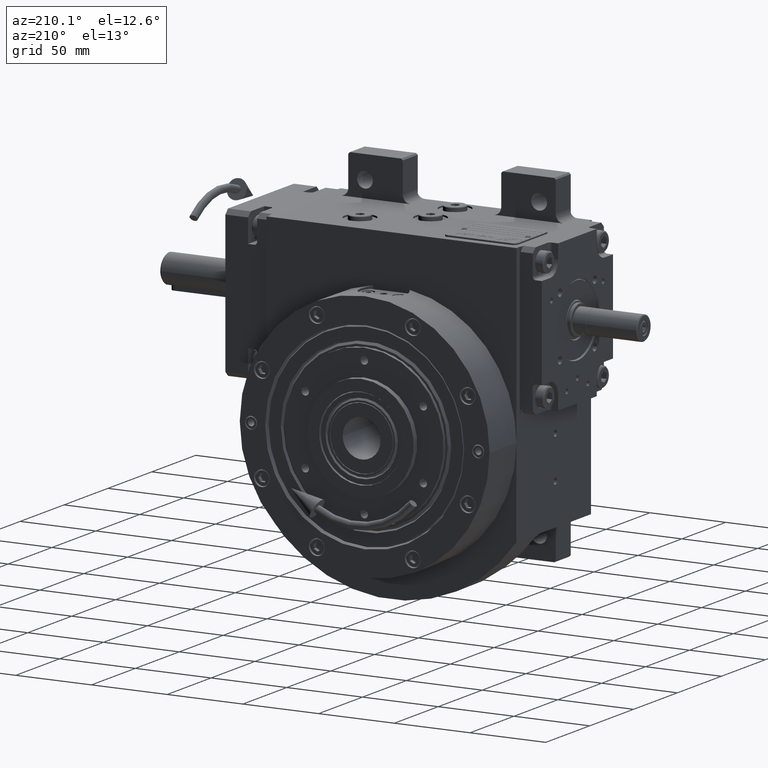
[diagram: clean part render]
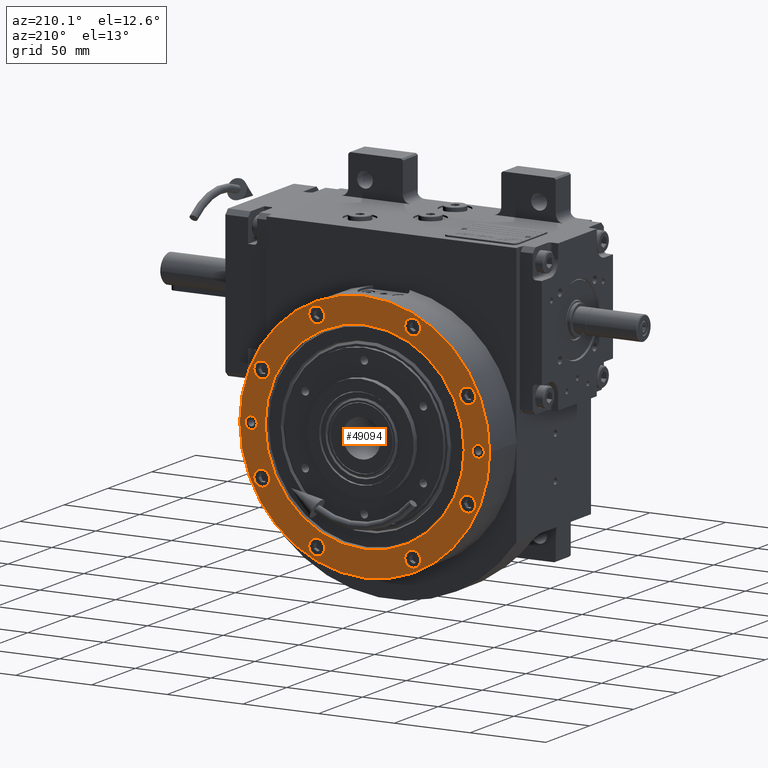
[diagram: same view with one face highlighted and labeled with its STEP entity id]
A machine part, auxiliary view. The second image highlights one B-rep face of the part: STEP entity #49094.
In plain terms, the highlighted planar face has unit normal (0, 1, 0).
Its self-contained STEP definition (entity closure, byte-faithful):
#173 = ORIENTED_EDGE ( 'NONE', *, *, #72139, .T. ) ;
#447 = AXIS2_PLACEMENT_3D ( 'NONE', #58576, #47555, #30694 ) ;
#1049 = AXIS2_PLACEMENT_3D ( 'NONE', #35669, #58048, #7778 ) ;
#1372 = ORIENTED_EDGE ( 'NONE', *, *, #19124, .F. ) ;
#1674 = CARTESIAN_POINT ( 'NONE',  ( 78.99999999999998579, 0.000000000000000000, 30.49999999999999289 ) ) ;
#1764 = CIRCLE ( 'NONE', #8726, 5.250000000000000888 ) ;
#1939 = EDGE_CURVE ( 'NONE', #35901, #51865, #2593, .T. ) ;
#2060 = FACE_BOUND ( 'NONE', #59719, .T. ) ;
#2550 = EDGE_LOOP ( 'NONE', ( #64256, #65587, #173 ) ) ;
#2593 = CIRCLE ( 'NONE', #447, 5.250000000000004441 ) ;
#2621 = CIRCLE ( 'NONE', #4972, 5.249999999999997335 ) ;
#2821 = EDGE_LOOP ( 'NONE', ( #29631, #53922 ) ) ;
#3004 = DIRECTION ( 'NONE',  ( 1.000000000000000000, 0.000000000000000000, 0.000000000000000000 ) ) ;
#3092 = DIRECTION ( 'NONE',  ( 0.000000000000000000, 0.000000000000000000, 1.000000000000000000 ) ) ;
#3125 = DIRECTION ( 'NONE',  ( -1.000000000000000000, 0.000000000000000000, 0.000000000000000000 ) ) ;
#3346 = AXIS2_PLACEMENT_3D ( 'NONE', #54854, #54131, #20775 ) ;
#3845 = CARTESIAN_POINT ( 'NONE',  ( 31.69636963055000223, 67.97308402775000502, 30.49999999999999289 ) ) ;
#3880 = EDGE_LOOP ( 'NONE', ( #25010, #62377 ) ) ;
#3949 = VERTEX_POINT ( 'NONE', #48915 ) ;
#4665 = ORIENTED_EDGE ( 'NONE', *, *, #23629, .F. ) ;
#4972 = AXIS2_PLACEMENT_3D ( 'NONE', #3845, #35758, #8961 ) ;
#5051 = VERTEX_POINT ( 'NONE', #41392 ) ;
#5174 = CARTESIAN_POINT ( 'NONE',  ( 0.000000000000000000, 0.000000000000000000, 30.49999999999999289 ) ) ;
#5299 = AXIS2_PLACEMENT_3D ( 'NONE', #66306, #16021, #49406 ) ;
#5449 = CARTESIAN_POINT ( 'NONE',  ( 0.000000000000000000, 0.000000000000000000, 30.49999999999999289 ) ) ;
#5511 = EDGE_CURVE ( 'NONE', #35558, #24035, #68905, .T. ) ;
#5673 = CARTESIAN_POINT ( 'NONE',  ( -82.50000000000001421, 2.020633851199993078E-14, 30.49999999999999289 ) ) ;
#5674 = EDGE_LOOP ( 'NONE', ( #40775, #36698 ) ) ;
#6090 = ORIENTED_EDGE ( 'NONE', *, *, #65025, .F. ) ;
#6881 = DIRECTION ( 'NONE',  ( 1.000000000000000000, 0.000000000000000000, 0.000000000000000000 ) ) ;
#7104 = DIRECTION ( 'NONE',  ( 0.000000000000000000, 0.000000000000000000, -1.000000000000000000 ) ) ;
#7297 = VERTEX_POINT ( 'NONE', #39184 ) ;
#7377 = CARTESIAN_POINT ( 'NONE',  ( -73.22308402774999081, 31.69636963055000223, 30.49999999999999289 ) ) ;
#7386 = VERTEX_POINT ( 'NONE', #10192 ) ;
#7554 = DIRECTION ( 'NONE',  ( -1.000000000000000000, 0.000000000000000000, 0.000000000000000000 ) ) ;
#7778 = DIRECTION ( 'NONE',  ( 1.000000000000000000, 0.000000000000000000, 0.000000000000000000 ) ) ;
#7871 = PLANE ( 'NONE',  #16782 ) ;
#7977 = ORIENTED_EDGE ( 'NONE', *, *, #59105, .T. ) ;
#8065 = EDGE_LOOP ( 'NONE', ( #20599, #57661 ) ) ;
#8073 = CARTESIAN_POINT ( 'NONE',  ( -65.72795184286999870, 0.000000000000000000, 30.49999232216999445 ) ) ;
#8726 = AXIS2_PLACEMENT_3D ( 'NONE', #65662, #37778, #54631 ) ;
#8778 = CIRCLE ( 'NONE', #5299, 5.250000000000004441 ) ;
#8961 = DIRECTION ( 'NONE',  ( 1.000000000000000000, 0.000000000000000000, 0.000000000000000000 ) ) ;
#9963 = EDGE_CURVE ( 'NONE', #60691, #5051, #64258, .T. ) ;
#10192 = CARTESIAN_POINT ( 'NONE',  ( 62.72308402774998370, -31.69636963055000223, 30.49999999999999289 ) ) ;
#10375 = EDGE_LOOP ( 'NONE', ( #4665, #21552 ) ) ;
#11585 = DIRECTION ( 'NONE',  ( 1.000000000000000000, 0.000000000000000000, 0.000000000000000000 ) ) ;
#11679 = EDGE_CURVE ( 'NONE', #7297, #28084, #58579, .T. ) ;
#12377 = AXIS2_PLACEMENT_3D ( 'NONE', #12893, #35277, #18759 ) ;
#12420 = CARTESIAN_POINT ( 'NONE',  ( -26.44636963054999867, 67.97308402775000502, 30.49999999999999289 ) ) ;
#12893 = CARTESIAN_POINT ( 'NONE',  ( 31.69636963055000223, -67.97308402775000502, 30.49999999999999289 ) ) ;
#12942 = CARTESIAN_POINT ( 'NONE',  ( -62.72308402775001213, 31.69636963055000223, 30.49999999999999289 ) ) ;
#12984 = ORIENTED_EDGE ( 'NONE', *, *, #31299, .F. ) ;
#13238 = CIRCLE ( 'NONE', #61289, 5.250000000000004441 ) ;
#13387 = FACE_BOUND ( 'NONE', #10375, .T. ) ;
#15271 = VERTEX_POINT ( 'NONE', #1674 ) ;
#15294 = EDGE_CURVE ( 'NONE', #3949, #51572, #54545, .T. ) ;
#15314 = EDGE_CURVE ( 'NONE', #28084, #7297, #22968, .T. ) ;
#15693 = CARTESIAN_POINT ( 'NONE',  ( -67.97308402775001923, -31.69636963055000223, 30.49999999999999289 ) ) ;
#16021 = DIRECTION ( 'NONE',  ( 0.000000000000000000, 0.000000000000000000, 1.000000000000000000 ) ) ;
#16025 = EDGE_CURVE ( 'NONE', #50749, #62599, #35222, .T. ) ;
#16048 = DIRECTION ( 'NONE',  ( 0.000000000000000000, 0.000000000000000000, 1.000000000000000000 ) ) ;
#16476 = CARTESIAN_POINT ( 'NONE',  ( -75.00000000000001421, 1.423604886319003288E-14, 30.49999999999999289 ) ) ;
#16659 = EDGE_CURVE ( 'NONE', #35101, #65627, #46927, .T. ) ;
#16782 = AXIS2_PLACEMENT_3D ( 'NONE', #30245, #60315, #43811 ) ;
#17378 = CARTESIAN_POINT ( 'NONE',  ( 67.97308402774999081, 31.69636963055000223, 30.49999999999999289 ) ) ;
#17401 = DIRECTION ( 'NONE',  ( 1.000000000000000000, 0.000000000000000000, 0.000000000000000000 ) ) ;
#17993 = EDGE_CURVE ( 'NONE', #24035, #65521, #24857, .T. ) ;
#18222 = EDGE_CURVE ( 'NONE', #15271, #60927, #69064, .T. ) ;
#18495 = CARTESIAN_POINT ( 'NONE',  ( -31.69636963055000223, -67.97308402775000502, 30.49999999999999289 ) ) ;
#18759 = DIRECTION ( 'NONE',  ( 1.000000000000000000, 0.000000000000000000, 0.000000000000000000 ) ) ;
#18851 = DIRECTION ( 'NONE',  ( -1.000000000000000000, 0.000000000000000000, 0.000000000000000000 ) ) ;
#19124 = EDGE_CURVE ( 'NONE', #39243, #68658, #61797, .T. ) ;
#19458 = DIRECTION ( 'NONE',  ( 0.000000000000000000, 0.000000000000000000, 1.000000000000000000 ) ) ;
#20599 = ORIENTED_EDGE ( 'NONE', *, *, #16659, .T. ) ;
#20775 = DIRECTION ( 'NONE',  ( -1.000000000000000000, 0.000000000000000000, 0.000000000000000000 ) ) ;
#21480 = EDGE_CURVE ( 'NONE', #62599, #50749, #64241, .T. ) ;
#21552 = ORIENTED_EDGE ( 'NONE', *, *, #63212, .F. ) ;
#22679 = DIRECTION ( 'NONE',  ( 0.000000000000000000, 0.000000000000000000, 1.000000000000000000 ) ) ;
#22701 = CARTESIAN_POINT ( 'NONE',  ( 2.060573933704000491E-13, 4.440892098501000776E-13, 30.49999232216999445 ) ) ;
#22968 = CIRCLE ( 'NONE', #27615, 5.249999999999997335 ) ;
#23219 = CARTESIAN_POINT ( 'NONE',  ( 31.69636963055000223, 67.97308402775000502, 30.49999999999999289 ) ) ;
#23629 = EDGE_CURVE ( 'NONE', #62606, #7386, #24563, .T. ) ;
#23887 = CIRCLE ( 'NONE', #37948, 5.250000000000004441 ) ;
#24035 = VERTEX_POINT ( 'NONE', #67639 ) ;
#24563 = CIRCLE ( 'NONE', #57405, 5.250000000000004441 ) ;
#24857 = CIRCLE ( 'NONE', #56494, 65.72795184286999870 ) ;
#25010 = ORIENTED_EDGE ( 'NONE', *, *, #41701, .F. ) ;
#25083 = DIRECTION ( 'NONE',  ( -1.000000000000000000, 0.000000000000000000, 0.000000000000000000 ) ) ;
#25246 = CIRCLE ( 'NONE', #12377, 5.249999999999997335 ) ;
#25425 = DIRECTION ( 'NONE',  ( 0.000000000000000000, 0.000000000000000000, 1.000000000000000000 ) ) ;
#25940 = CARTESIAN_POINT ( 'NONE',  ( 62.72308402774998370, 31.69636963055000223, 30.49999999999999289 ) ) ;
#26294 = CARTESIAN_POINT ( 'NONE',  ( 2.060573933704000491E-13, -65.72795184287261350, 30.49999232216999445 ) ) ;
#27442 = CARTESIAN_POINT ( 'NONE',  ( -71.00000000000001421, 1.521575012437008940E-14, 30.49999999999999289 ) ) ;
#27512 = DIRECTION ( 'NONE',  ( -1.000000000000000000, 0.000000000000000000, 0.000000000000000000 ) ) ;
#27615 = AXIS2_PLACEMENT_3D ( 'NONE', #18495, #25425, #18851 ) ;
#27893 = DIRECTION ( 'NONE',  ( 0.000000000000000000, 0.000000000000000000, 1.000000000000000000 ) ) ;
#28084 = VERTEX_POINT ( 'NONE', #31670 ) ;
#28737 = DIRECTION ( 'NONE',  ( -1.000000000000000000, 0.000000000000000000, 0.000000000000000000 ) ) ;
#29631 = ORIENTED_EDGE ( 'NONE', *, *, #1939, .F. ) ;
#29899 = FACE_BOUND ( 'NONE', #39759, .T. ) ;
#30245 = CARTESIAN_POINT ( 'NONE',  ( 0.000000000000000000, 0.000000000000000000, 30.49999999999999289 ) ) ;
#30694 = DIRECTION ( 'NONE',  ( 1.000000000000000000, 0.000000000000000000, 0.000000000000000000 ) ) ;
#31107 = CARTESIAN_POINT ( 'NONE',  ( 36.94636963055000223, 67.97308402775000502, 30.49999999999999289 ) ) ;
#31299 = EDGE_CURVE ( 'NONE', #68658, #39243, #2621, .T. ) ;
#31459 = AXIS2_PLACEMENT_3D ( 'NONE', #63235, #7104, #57003 ) ;
#31670 = CARTESIAN_POINT ( 'NONE',  ( -36.94636963055000223, -67.97308402775000502, 30.49999999999999289 ) ) ;
#32618 = AXIS2_PLACEMENT_3D ( 'NONE', #62238, #34369, #7554 ) ;
#32887 = AXIS2_PLACEMENT_3D ( 'NONE', #37793, #53564, #3004 ) ;
#33986 = AXIS2_PLACEMENT_3D ( 'NONE', #37034, #19458, #47662 ) ;
#34224 = EDGE_LOOP ( 'NONE', ( #12984, #1372 ) ) ;
#34369 = DIRECTION ( 'NONE',  ( 0.000000000000000000, 0.000000000000000000, -1.000000000000000000 ) ) ;
#34539 = CARTESIAN_POINT ( 'NONE',  ( 36.94636963055000223, -67.97308402775000502, 30.49999999999999289 ) ) ;
#34942 = DIRECTION ( 'NONE',  ( 0.000000000000000000, 0.000000000000000000, 1.000000000000000000 ) ) ;
#35037 = FACE_OUTER_BOUND ( 'NONE', #8065, .T. ) ;
#35101 = VERTEX_POINT ( 'NONE', #5673 ) ;
#35222 = CIRCLE ( 'NONE', #32887, 5.250000000000004441 ) ;
#35277 = DIRECTION ( 'NONE',  ( 0.000000000000000000, 0.000000000000000000, 1.000000000000000000 ) ) ;
#35558 = VERTEX_POINT ( 'NONE', #8073 ) ;
#35669 = CARTESIAN_POINT ( 'NONE',  ( -75.00000000000001421, 1.423604886319003288E-14, 30.49999999999999289 ) ) ;
#35736 = ORIENTED_EDGE ( 'NONE', *, *, #36720, .F. ) ;
#35758 = DIRECTION ( 'NONE',  ( 0.000000000000000000, 0.000000000000000000, 1.000000000000000000 ) ) ;
#35901 = VERTEX_POINT ( 'NONE', #66595 ) ;
#36698 = ORIENTED_EDGE ( 'NONE', *, *, #47806, .T. ) ;
#36720 = EDGE_CURVE ( 'NONE', #51114, #69765, #25246, .T. ) ;
#36836 = CARTESIAN_POINT ( 'NONE',  ( -67.97308402775001923, -31.69636963055000223, 30.49999999999999289 ) ) ;
#36905 = EDGE_CURVE ( 'NONE', #65627, #35101, #66321, .T. ) ;
#37034 = CARTESIAN_POINT ( 'NONE',  ( -31.69636963055000223, -67.97308402775000502, 30.49999999999999289 ) ) ;
#37778 = DIRECTION ( 'NONE',  ( 0.000000000000000000, 0.000000000000000000, 1.000000000000000000 ) ) ;
#37793 = CARTESIAN_POINT ( 'NONE',  ( -67.97308402775001923, 31.69636963055000223, 30.49999999999999289 ) ) ;
#37948 = AXIS2_PLACEMENT_3D ( 'NONE', #17378, #55542, #61450 ) ;
#38004 = CARTESIAN_POINT ( 'NONE',  ( 26.44636963054999867, 67.97308402775000502, 30.49999999999999289 ) ) ;
#39184 = CARTESIAN_POINT ( 'NONE',  ( -26.44636963054999867, -67.97308402775000502, 30.49999999999999289 ) ) ;
#39243 = VERTEX_POINT ( 'NONE', #38004 ) ;
#39475 = CARTESIAN_POINT ( 'NONE',  ( 67.97308402774999081, -31.69636963055000223, 30.49999999999999289 ) ) ;
#39759 = EDGE_LOOP ( 'NONE', ( #6090, #65595 ) ) ;
#40023 = AXIS2_PLACEMENT_3D ( 'NONE', #52973, #47817, #3125 ) ;
#40461 = AXIS2_PLACEMENT_3D ( 'NONE', #58103, #51864, #17401 ) ;
#40775 = ORIENTED_EDGE ( 'NONE', *, *, #18222, .T. ) ;
#40900 = FACE_BOUND ( 'NONE', #34224, .T. ) ;
#41392 = CARTESIAN_POINT ( 'NONE',  ( -79.00000000000001421, 1.374620632166009432E-14, 30.49999999999999289 ) ) ;
#41701 = EDGE_CURVE ( 'NONE', #56138, #48305, #51900, .T. ) ;
#43811 = DIRECTION ( 'NONE',  ( 1.000000000000000000, 0.000000000000000000, 0.000000000000000000 ) ) ;
#45067 = DIRECTION ( 'NONE',  ( 0.000000000000000000, 0.000000000000000000, -1.000000000000000000 ) ) ;
#46252 = CARTESIAN_POINT ( 'NONE',  ( 73.22308402774999081, -31.69636963055000223, 30.49999999999999289 ) ) ;
#46684 = CIRCLE ( 'NONE', #31459, 65.72795184286999870 ) ;
#46927 = CIRCLE ( 'NONE', #50513, 82.50000000000000000 ) ;
#47220 = CARTESIAN_POINT ( 'NONE',  ( 26.44636963054999867, -67.97308402775000502, 30.49999999999999289 ) ) ;
#47555 = DIRECTION ( 'NONE',  ( 0.000000000000000000, 0.000000000000000000, 1.000000000000000000 ) ) ;
#47662 = DIRECTION ( 'NONE',  ( 1.000000000000000000, 0.000000000000000000, 0.000000000000000000 ) ) ;
#47707 = AXIS2_PLACEMENT_3D ( 'NONE', #23219, #34942, #28737 ) ;
#47805 = DIRECTION ( 'NONE',  ( 0.000000000000000000, 0.000000000000000000, 1.000000000000000000 ) ) ;
#47806 = EDGE_CURVE ( 'NONE', #60927, #15271, #63492, .T. ) ;
#47817 = DIRECTION ( 'NONE',  ( 0.000000000000000000, 0.000000000000000000, -1.000000000000000000 ) ) ;
#48305 = VERTEX_POINT ( 'NONE', #58052 ) ;
#48624 = DIRECTION ( 'NONE',  ( 1.000000000000000000, 0.000000000000000000, 0.000000000000000000 ) ) ;
#48915 = CARTESIAN_POINT ( 'NONE',  ( -36.94636963055000223, 67.97308402775000502, 30.49999999999999289 ) ) ;
#48980 = DIRECTION ( 'NONE',  ( 0.000000000000000000, 0.000000000000000000, -1.000000000000000000 ) ) ;
#49094 = ADVANCED_FACE ( 'NONE', ( #35037, #68794, #70225, #57411, #40900, #29899, #52243, #69149, #2060, #63662, #13387, #58136 ), #7871, .T. ) ;
#49406 = DIRECTION ( 'NONE',  ( -1.000000000000000000, 0.000000000000000000, 0.000000000000000000 ) ) ;
#49858 = ORIENTED_EDGE ( 'NONE', *, *, #16025, .F. ) ;
#49880 = EDGE_LOOP ( 'NONE', ( #60274, #7977 ) ) ;
#50464 = CARTESIAN_POINT ( 'NONE',  ( 82.49999999999998579, -1.010300241903009221E-14, 30.49999999999999289 ) ) ;
#50513 = AXIS2_PLACEMENT_3D ( 'NONE', #5449, #16048, #50526 ) ;
#50526 = DIRECTION ( 'NONE',  ( -1.000000000000000000, 0.000000000000000000, 0.000000000000000000 ) ) ;
#50749 = VERTEX_POINT ( 'NONE', #12942 ) ;
#51114 = VERTEX_POINT ( 'NONE', #34539 ) ;
#51572 = VERTEX_POINT ( 'NONE', #12420 ) ;
#51864 = DIRECTION ( 'NONE',  ( 0.000000000000000000, 0.000000000000000000, 1.000000000000000000 ) ) ;
#51865 = VERTEX_POINT ( 'NONE', #25940 ) ;
#51900 = CIRCLE ( 'NONE', #61318, 5.250000000000004441 ) ;
#52243 = FACE_BOUND ( 'NONE', #60141, .T. ) ;
#52973 = CARTESIAN_POINT ( 'NONE',  ( 74.99999999999998579, 0.000000000000000000, 30.49999999999999289 ) ) ;
#53127 = ORIENTED_EDGE ( 'NONE', *, *, #21480, .F. ) ;
#53318 = CIRCLE ( 'NONE', #40461, 5.250000000000000888 ) ;
#53564 = DIRECTION ( 'NONE',  ( 0.000000000000000000, 0.000000000000000000, 1.000000000000000000 ) ) ;
#53922 = ORIENTED_EDGE ( 'NONE', *, *, #62014, .F. ) ;
#54131 = DIRECTION ( 'NONE',  ( 0.000000000000000000, 0.000000000000000000, 1.000000000000000000 ) ) ;
#54487 = CARTESIAN_POINT ( 'NONE',  ( 74.99999999999998579, 0.000000000000000000, 30.49999999999999289 ) ) ;
#54545 = CIRCLE ( 'NONE', #56877, 5.249999999999997335 ) ;
#54631 = DIRECTION ( 'NONE',  ( -1.000000000000000000, 0.000000000000000000, 0.000000000000000000 ) ) ;
#54854 = CARTESIAN_POINT ( 'NONE',  ( -67.97308402775001923, 31.69636963055000223, 30.49999999999999289 ) ) ;
#55169 = CIRCLE ( 'NONE', #69274, 4.000000000000003553 ) ;
#55542 = DIRECTION ( 'NONE',  ( 0.000000000000000000, 0.000000000000000000, 1.000000000000000000 ) ) ;
#56138 = VERTEX_POINT ( 'NONE', #61652 ) ;
#56494 = AXIS2_PLACEMENT_3D ( 'NONE', #22701, #45067, #6881 ) ;
#56561 = ORIENTED_EDGE ( 'NONE', *, *, #64094, .F. ) ;
#56877 = AXIS2_PLACEMENT_3D ( 'NONE', #58826, #3092, #25083 ) ;
#57003 = DIRECTION ( 'NONE',  ( 1.000000000000000000, 0.000000000000000000, 0.000000000000000000 ) ) ;
#57405 = AXIS2_PLACEMENT_3D ( 'NONE', #39475, #61870, #11585 ) ;
#57411 = FACE_BOUND ( 'NONE', #2821, .T. ) ;
#57661 = ORIENTED_EDGE ( 'NONE', *, *, #36905, .T. ) ;
#58048 = DIRECTION ( 'NONE',  ( 0.000000000000000000, 0.000000000000000000, -1.000000000000000000 ) ) ;
#58052 = CARTESIAN_POINT ( 'NONE',  ( -73.22308402774999081, -31.69636963055000223, 30.49999999999999289 ) ) ;
#58084 = ORIENTED_EDGE ( 'NONE', *, *, #15314, .F. ) ;
#58103 = CARTESIAN_POINT ( 'NONE',  ( -31.69636963055000223, 67.97308402775000502, 30.49999999999999289 ) ) ;
#58136 = FACE_BOUND ( 'NONE', #2550, .T. ) ;
#58576 = CARTESIAN_POINT ( 'NONE',  ( 67.97308402774999081, 31.69636963055000223, 30.49999999999999289 ) ) ;
#58579 = CIRCLE ( 'NONE', #33986, 5.250000000000000888 ) ;
#58826 = CARTESIAN_POINT ( 'NONE',  ( -31.69636963055000223, 67.97308402775000502, 30.49999999999999289 ) ) ;
#59105 = EDGE_CURVE ( 'NONE', #5051, #60691, #55169, .T. ) ;
#59719 = EDGE_LOOP ( 'NONE', ( #69387, #58084 ) ) ;
#60141 = EDGE_LOOP ( 'NONE', ( #49858, #53127 ) ) ;
#60274 = ORIENTED_EDGE ( 'NONE', *, *, #9963, .T. ) ;
#60315 = DIRECTION ( 'NONE',  ( 0.000000000000000000, 0.000000000000000000, 1.000000000000000000 ) ) ;
#60691 = VERTEX_POINT ( 'NONE', #27442 ) ;
#60711 = EDGE_CURVE ( 'NONE', #48305, #56138, #13238, .T. ) ;
#60927 = VERTEX_POINT ( 'NONE', #63345 ) ;
#61289 = AXIS2_PLACEMENT_3D ( 'NONE', #15693, #22679, #67073 ) ;
#61318 = AXIS2_PLACEMENT_3D ( 'NONE', #36836, #47805, #70206 ) ;
#61450 = DIRECTION ( 'NONE',  ( -1.000000000000000000, 0.000000000000000000, 0.000000000000000000 ) ) ;
#61652 = CARTESIAN_POINT ( 'NONE',  ( -62.72308402775001213, -31.69636963055000223, 30.49999999999999289 ) ) ;
#61797 = CIRCLE ( 'NONE', #47707, 5.250000000000000888 ) ;
#61870 = DIRECTION ( 'NONE',  ( 0.000000000000000000, 0.000000000000000000, 1.000000000000000000 ) ) ;
#62014 = EDGE_CURVE ( 'NONE', #51865, #35901, #23887, .T. ) ;
#62238 = CARTESIAN_POINT ( 'NONE',  ( 1.918465386552000143E-13, 1.438849039913999161E-13, 30.49999232216999445 ) ) ;
#62377 = ORIENTED_EDGE ( 'NONE', *, *, #60711, .F. ) ;
#62599 = VERTEX_POINT ( 'NONE', #7377 ) ;
#62606 = VERTEX_POINT ( 'NONE', #46252 ) ;
#63212 = EDGE_CURVE ( 'NONE', #7386, #62606, #8778, .T. ) ;
#63235 = CARTESIAN_POINT ( 'NONE',  ( 2.060573933704000491E-13, 4.440892098501000776E-13, 30.49999232216999445 ) ) ;
#63345 = CARTESIAN_POINT ( 'NONE',  ( 70.99999999999998579, 0.000000000000000000, 30.49999999999999289 ) ) ;
#63492 = CIRCLE ( 'NONE', #40023, 4.000000000000003553 ) ;
#63662 = FACE_BOUND ( 'NONE', #65671, .T. ) ;
#64094 = EDGE_CURVE ( 'NONE', #69765, #51114, #1764, .T. ) ;
#64241 = CIRCLE ( 'NONE', #3346, 5.250000000000004441 ) ;
#64256 = ORIENTED_EDGE ( 'NONE', *, *, #5511, .T. ) ;
#64258 = CIRCLE ( 'NONE', #1049, 4.000000000000003553 ) ;
#65025 = EDGE_CURVE ( 'NONE', #51572, #3949, #53318, .T. ) ;
#65521 = VERTEX_POINT ( 'NONE', #26294 ) ;
#65587 = ORIENTED_EDGE ( 'NONE', *, *, #17993, .T. ) ;
#65595 = ORIENTED_EDGE ( 'NONE', *, *, #15294, .F. ) ;
#65627 = VERTEX_POINT ( 'NONE', #50464 ) ;
#65662 = CARTESIAN_POINT ( 'NONE',  ( 31.69636963055000223, -67.97308402775000502, 30.49999999999999289 ) ) ;
#65671 = EDGE_LOOP ( 'NONE', ( #35736, #56561 ) ) ;
#66043 = DIRECTION ( 'NONE',  ( 0.000000000000000000, 0.000000000000000000, -1.000000000000000000 ) ) ;
#66306 = CARTESIAN_POINT ( 'NONE',  ( 67.97308402774999081, -31.69636963055000223, 30.49999999999999289 ) ) ;
#66321 = CIRCLE ( 'NONE', #72197, 82.50000000000000000 ) ;
#66595 = CARTESIAN_POINT ( 'NONE',  ( 73.22308402774999081, 31.69636963055000223, 30.49999999999999289 ) ) ;
#66771 = AXIS2_PLACEMENT_3D ( 'NONE', #54487, #48980, #48624 ) ;
#66786 = DIRECTION ( 'NONE',  ( 1.000000000000000000, 0.000000000000000000, 0.000000000000000000 ) ) ;
#67073 = DIRECTION ( 'NONE',  ( -1.000000000000000000, 0.000000000000000000, 0.000000000000000000 ) ) ;
#67639 = CARTESIAN_POINT ( 'NONE',  ( 65.72795184286999870, 1.310051197827999923E-14, 30.49999232216999445 ) ) ;
#68658 = VERTEX_POINT ( 'NONE', #31107 ) ;
#68794 = FACE_BOUND ( 'NONE', #5674, .T. ) ;
#68905 = CIRCLE ( 'NONE', #32618, 65.72795184286999870 ) ;
#69064 = CIRCLE ( 'NONE', #66771, 4.000000000000003553 ) ;
#69149 = FACE_BOUND ( 'NONE', #3880, .T. ) ;
#69274 = AXIS2_PLACEMENT_3D ( 'NONE', #16476, #66043, #27512 ) ;
#69387 = ORIENTED_EDGE ( 'NONE', *, *, #11679, .F. ) ;
#69765 = VERTEX_POINT ( 'NONE', #47220 ) ;
#70206 = DIRECTION ( 'NONE',  ( 1.000000000000000000, 0.000000000000000000, 0.000000000000000000 ) ) ;
#70225 = FACE_BOUND ( 'NONE', #49880, .T. ) ;
#72139 = EDGE_CURVE ( 'NONE', #65521, #35558, #46684, .T. ) ;
#72197 = AXIS2_PLACEMENT_3D ( 'NONE', #5174, #27893, #66786 ) ;